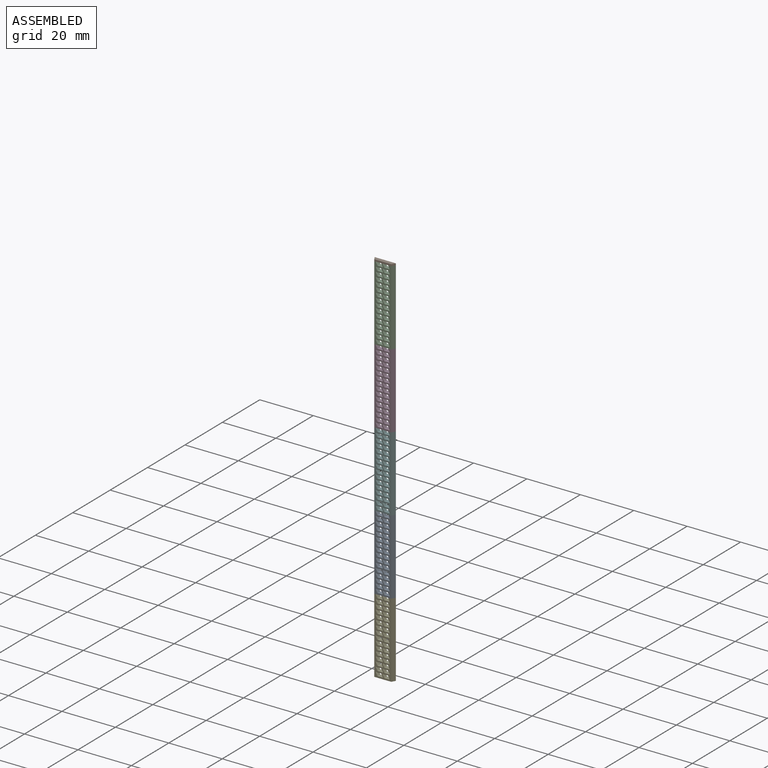
[diagram: assembled view]
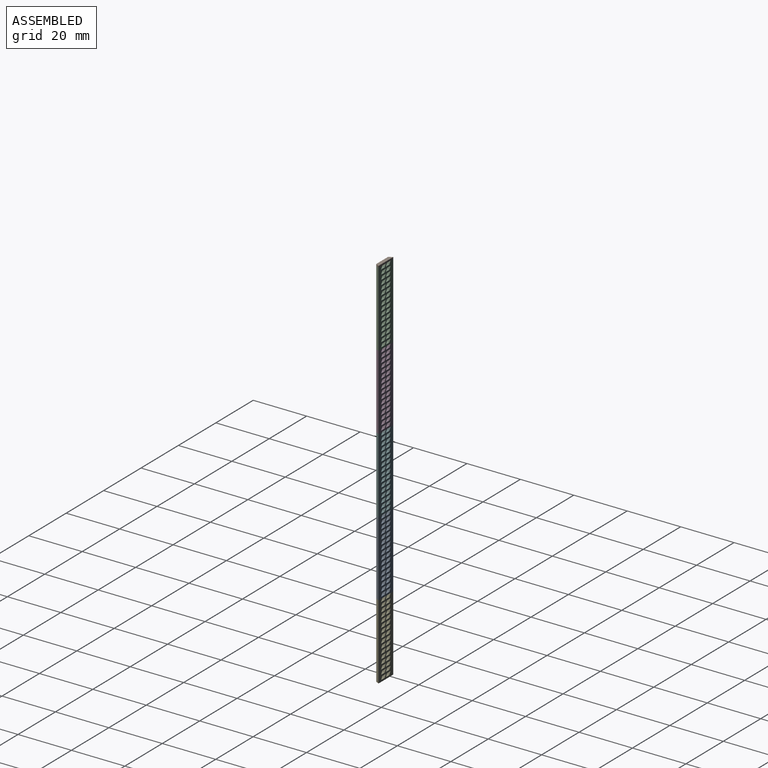
[diagram: assembled view, second angle]
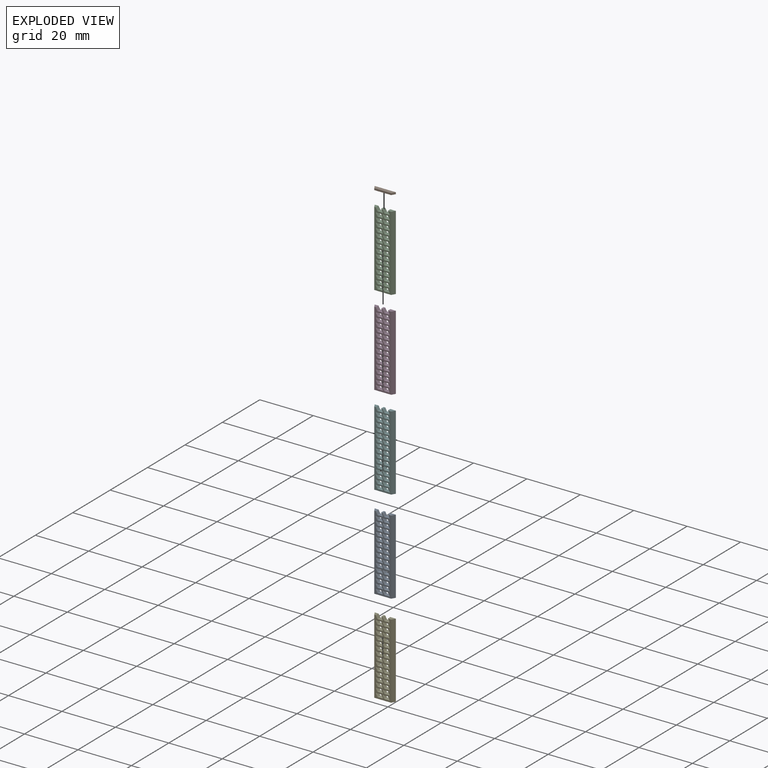
[diagram: exploded view]
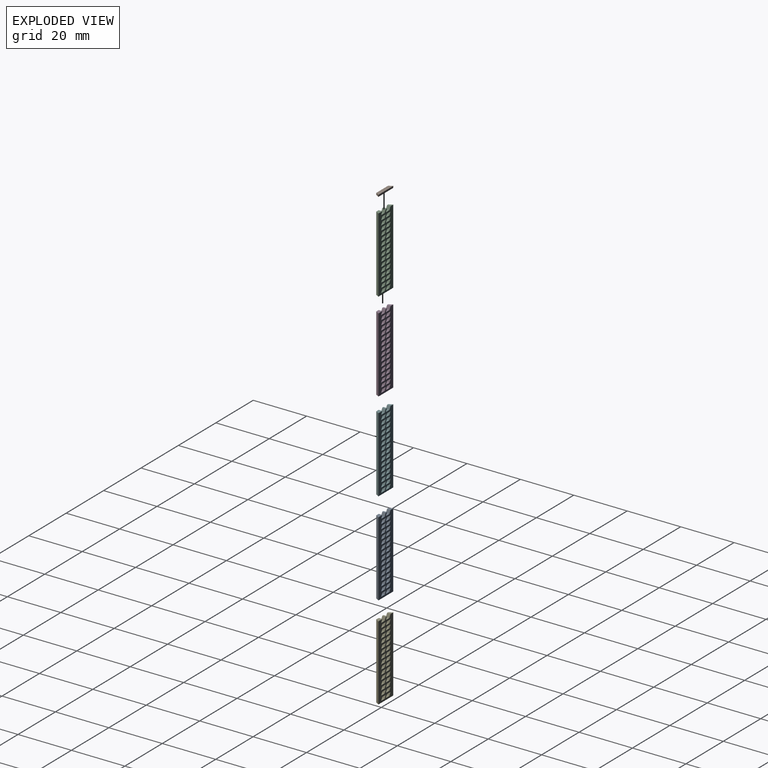
[diagram: exploded view, second angle]
ASSEMBLY  parts=6 mates=5
PART A: 260 faces, bbox 7.9x1.4x28.2 mm
  f0: plane 1.38x0.66mm, normal (0,0,1), area 0.9mm2, adj f2,f3,f28,f117,f190,f194
  f1: plane 2.09x1.38mm, normal (0,0,1), area 2.3mm2, adj f2,f3,f5,f30,f191
  f2: plane 28.13x6.35mm, normal (0,-1,0), area 85.4mm2, adj f0,f1,f4,f5,f6,f7,f134,f135
  f3: plane 28.13x7.94mm, normal (0,1,0), area 157.4mm2, adj f0,f1,f4,f5,f6,f7,f8,f9
  f4: plane 28.13x1.38mm, normal (-0.87,-0.5,0), area 44.6mm2, adj f2,f3,f6,f7
  f5: plane 28.13x1.38mm, normal (0.87,-0.5,0), area 44.6mm2, adj f1,f2,f3,f7
  f6: plane 1.45x1.38mm, normal (0,0,1), area 1.4mm2, adj f2,f3,f4,f115,f193
  f7: plane 7.94x1.38mm, normal (0,0,-1), area 9.8mm2, adj f2,f3,f4,f5
  f8: plane 1.87x1.25mm, normal (0,0,1), area 2.3mm2, adj f3,f9,f11,f257
  f9: plane 1.25x1.1mm, normal (-0.87,0,-0.5), area 1.6mm2, adj f3,f8,f10,f259
  f10: plane 1.87x1.25mm, normal (0,0,-1), area 2.3mm2, adj f3,f9,f11,f258
  f11: plane 1.25x1.1mm, normal (0.87,0,0.5), area 1.6mm2, adj f3,f8,f10,f256
  f12: plane 1.87x1.25mm, normal (0,0,1), area 2.3mm2, adj f3,f13,f15,f163
  f13: plane 1.25x1.1mm, normal (-0.87,0,-0.5), area 1.6mm2, adj f3,f12,f14,f165
  f14: plane 1.87x1.25mm, normal (0,0,-1), area 2.3mm2, adj f3,f13,f15,f164
  f15: plane 1.25x1.1mm, normal (0.87,0,0.5), area 1.6mm2, adj f3,f12,f14,f162
  f16: plane 1.87x1.25mm, normal (0,0,1), area 2.3mm2, adj f3,f17,f19,f167
  f17: plane 1.25x1.1mm, normal (-0.87,0,-0.5), area 1.6mm2, adj f3,f16,f18,f169
  f18: plane 1.87x1.25mm, normal (0,0,-1), area 2.3mm2, adj f3,f17,f19,f168
  f19: plane 1.25x1.1mm, normal (0.87,0,0.5), area 1.6mm2, adj f3,f16,f18,f166
  f20: plane 1.87x1.25mm, normal (0,0,-1), area 2.3mm2, adj f3,f21,f23,f171
  f21: plane 1.25x1.1mm, normal (0.87,0,0.5), area 1.6mm2, adj f3,f20,f22,f173
  f22: plane 1.87x1.25mm, normal (0,0,1), area 2.3mm2, adj f3,f21,f23,f172
  f23: plane 1.25x1.1mm, normal (-0.87,0,-0.5), area 1.6mm2, adj f3,f20,f22,f170
  f24: plane 1.87x1.25mm, normal (0,0,-1), area 2.3mm2, adj f3,f25,f27,f175
  f25: plane 1.25x1.1mm, normal (0.87,0,0.5), area 1.6mm2, adj f3,f24,f26,f177
  f26: plane 1.87x1.25mm, normal (0,0,1), area 2.3mm2, adj f3,f25,f27,f176
  f27: plane 1.25x1.1mm, normal (-0.87,0,-0.5), area 1.6mm2, adj f3,f24,f26,f174
  f28: plane 1.25x1.1mm, normal (0.87,0,0.5), area 1.6mm2, adj f0,f3,f29,f190
  f29: plane 1.87x1.25mm, normal (0,0,1), area 2.3mm2, adj f3,f28,f30,f192
  f30: plane 1.25x1.1mm, normal (-0.87,0,-0.5), area 1.6mm2, adj f1,f3,f29,f191
  f31: plane 1.87x1.25mm, normal (0,0,1), area 2.3mm2, adj f3,f32,f34,f187
  f32: plane 1.25x1.1mm, normal (-0.87,0,-0.5), area 1.6mm2, adj f3,f31,f33,f189
  f33: plane 1.87x1.25mm, normal (0,0,-1), area 2.3mm2, adj f3,f32,f34,f188
  f34: plane 1.25x1.1mm, normal (0.87,0,0.5), area 1.6mm2, adj f3,f31,f33,f186
  f35: plane 1.87x1.25mm, normal (0,0,-1), area 2.3mm2, adj f3,f36,f38,f183
  f36: plane 1.25x1.1mm, normal (0.87,0,0.5), area 1.6mm2, adj f3,f35,f37,f185
  f37: plane 1.87x1.25mm, normal (0,0,1), area 2.3mm2, adj f3,f36,f38,f184
  f38: plane 1.25x1.1mm, normal (-0.87,0,-0.5), area 1.6mm2, adj f3,f35,f37,f182
  f39: plane 1.87x1.25mm, normal (0,0,1), area 2.3mm2, adj f3,f40,f42,f179
  f40: plane 1.25x1.1mm, normal (-0.87,0,-0.5), area 1.6mm2, adj f3,f39,f41,f181
  f41: plane 1.87x1.25mm, normal (0,0,-1), area 2.3mm2, adj f3,f40,f42,f180
  f42: plane 1.25x1.1mm, normal (0.87,0,0.5), area 1.6mm2, adj f3,f39,f41,f178
  f43: plane 1.87x1.25mm, normal (0,0,1), area 2.3mm2, adj f3,f44,f46,f135
  f44: plane 1.25x1.1mm, normal (-0.87,0,-0.5), area 1.6mm2, adj f3,f43,f45,f137
  f45: plane 1.87x1.25mm, normal (0,0,-1), area 2.3mm2, adj f3,f44,f46,f136
  f46: plane 1.25x1.1mm, normal (0.87,0,0.5), area 1.6mm2, adj f3,f43,f45,f134
  f47: plane 1.87x1.25mm, normal (0,0,-1), area 2.3mm2, adj f3,f48,f50,f139
  f48: plane 1.25x1.1mm, normal (0.87,0,0.5), area 1.6mm2, adj f3,f47,f49,f141
  f49: plane 1.87x1.25mm, normal (0,0,1), area 2.3mm2, adj f3,f48,f50,f140
  f50: plane 1.25x1.1mm, normal (-0.87,0,-0.5), area 1.6mm2, adj f3,f47,f49,f138
  f51: plane 1.87x1.25mm, normal (0,0,-1), area 2.3mm2, adj f3,f52,f54,f143
  f52: plane 1.25x1.1mm, normal (0.87,0,0.5), area 1.6mm2, adj f3,f51,f53,f145
  f53: plane 1.87x1.25mm, normal (0,0,1), area 2.3mm2, adj f3,f52,f54,f144
  f54: plane 1.25x1.1mm, normal (-0.87,0,-0.5), area 1.6mm2, adj f3,f51,f53,f142
  f55: plane 1.87x1.25mm, normal (0,0,1), area 2.3mm2, adj f3,f56,f58,f147
  f56: plane 1.25x1.1mm, normal (-0.87,0,-0.5), area 1.6mm2, adj f3,f55,f57,f149
  f57: plane 1.87x1.25mm, normal (0,0,-1), area 2.3mm2, adj f3,f56,f58,f148
  f58: plane 1.25x1.1mm, normal (0.87,0,0.5), area 1.6mm2, adj f3,f55,f57,f146
  f59: plane 1.87x1.25mm, normal (0,0,1), area 2.3mm2, adj f3,f60,f62,f151
  f60: plane 1.25x1.1mm, normal (-0.87,0,-0.5), area 1.6mm2, adj f3,f59,f61,f153
  f61: plane 1.87x1.25mm, normal (0,0,-1), area 2.3mm2, adj f3,f60,f62,f152
  f62: plane 1.25x1.1mm, normal (0.87,0,0.5), area 1.6mm2, adj f3,f59,f61,f150
  f63: plane 1.87x1.25mm, normal (0,0,-1), area 2.3mm2, adj f3,f64,f66,f155
  f64: plane 1.25x1.1mm, normal (0.87,0,0.5), area 1.6mm2, adj f3,f63,f65,f157
  f65: plane 1.87x1.25mm, normal (0,0,1), area 2.3mm2, adj f3,f64,f66,f156
  f66: plane 1.25x1.1mm, normal (-0.87,0,-0.5), area 1.6mm2, adj f3,f63,f65,f154
  f67: plane 1.87x1.25mm, normal (0,0,-1), area 2.3mm2, adj f3,f68,f70,f159
  f68: plane 1.25x1.1mm, normal (0.87,0,0.5), area 1.6mm2, adj f3,f67,f69,f161
  f69: plane 1.87x1.25mm, normal (0,0,1), area 2.3mm2, adj f3,f68,f70,f160
  f70: plane 1.25x1.1mm, normal (-0.87,0,-0.5), area 1.6mm2, adj f3,f67,f69,f158
  f71: plane 1.87x1.25mm, normal (0,0,-1), area 2.3mm2, adj f3,f72,f74,f225
  f72: plane 1.25x1.1mm, normal (0.87,0,0.5), area 1.6mm2, adj f3,f71,f73,f227
  f73: plane 1.87x1.25mm, normal (0,0,1), area 2.3mm2, adj f3,f72,f74,f226
  f74: plane 1.25x1.1mm, normal (-0.87,0,-0.5), area 1.6mm2, adj f3,f71,f73,f224
  f75: plane 1.87x1.25mm, normal (0,0,-1), area 2.3mm2, adj f3,f76,f78,f229
  f76: plane 1.25x1.1mm, normal (0.87,0,0.5), area 1.6mm2, adj f3,f75,f77,f231
  f77: plane 1.87x1.25mm, normal (0,0,1), area 2.3mm2, adj f3,f76,f78,f230
  f78: plane 1.25x1.1mm, normal (-0.87,0,-0.5), area 1.6mm2, adj f3,f75,f77,f228
  f79: plane 1.87x1.25mm, normal (0,0,1), area 2.3mm2, adj f3,f80,f82,f233
  f80: plane 1.25x1.1mm, normal (-0.87,0,-0.5), area 1.6mm2, adj f3,f79,f81,f235
  f81: plane 1.87x1.25mm, normal (0,0,-1), area 2.3mm2, adj f3,f80,f82,f234
  f82: plane 1.25x1.1mm, normal (0.87,0,0.5), area 1.6mm2, adj f3,f79,f81,f232
  f83: plane 1.87x1.25mm, normal (0,0,1), area 2.3mm2, adj f3,f84,f86,f237
  f84: plane 1.25x1.1mm, normal (-0.87,0,-0.5), area 1.6mm2, adj f3,f83,f85,f239
  f85: plane 1.87x1.25mm, normal (0,0,-1), area 2.3mm2, adj f3,f84,f86,f238
  f86: plane 1.25x1.1mm, normal (0.87,0,0.5), area 1.6mm2, adj f3,f83,f85,f236
  f87: plane 1.87x1.25mm, normal (0,0,-1), area 2.3mm2, adj f3,f88,f90,f252
  f88: plane 1.25x1.1mm, normal (0.87,0,0.5), area 1.6mm2, adj f3,f87,f89,f253
  f89: plane 1.87x1.25mm, normal (0,0,1), area 2.3mm2, adj f3,f88,f90,f255
  f90: plane 1.25x1.1mm, normal (-0.87,0,-0.5), area 1.6mm2, adj f3,f87,f89,f254
  f91: plane 1.87x1.25mm, normal (0,0,1), area 2.3mm2, adj f3,f92,f94,f249
  f92: plane 1.25x1.1mm, normal (-0.87,0,-0.5), area 1.6mm2, adj f3,f91,f93,f251
  f93: plane 1.87x1.25mm, normal (0,0,-1), area 2.3mm2, adj f3,f92,f94,f250
  f94: plane 1.25x1.1mm, normal (0.87,0,0.5), area 1.6mm2, adj f3,f91,f93,f248
  f95: plane 1.87x1.25mm, normal (0,0,-1), area 2.3mm2, adj f3,f96,f98,f245
  f96: plane 1.25x1.1mm, normal (0.87,0,0.5), area 1.6mm2, adj f3,f95,f97,f247
  f97: plane 1.87x1.25mm, normal (0,0,1), area 2.3mm2, adj f3,f96,f98,f246
  f98: plane 1.25x1.1mm, normal (-0.87,0,-0.5), area 1.6mm2, adj f3,f95,f97,f244
  f99: plane 1.87x1.25mm, normal (0,0,-1), area 2.3mm2, adj f3,f100,f102,f241
  f100: plane 1.25x1.1mm, normal (0.87,0,0.5), area 1.6mm2, adj f3,f99,f101,f243
  f101: plane 1.87x1.25mm, normal (0,0,1), area 2.3mm2, adj f3,f100,f102,f242
  f102: plane 1.25x1.1mm, normal (-0.87,0,-0.5), area 1.6mm2, adj f3,f99,f101,f240
  f103: plane 1.87x1.25mm, normal (0,0,-1), area 2.3mm2, adj f3,f104,f106,f205
  f104: plane 1.25x1.1mm, normal (0.87,0,0.5), area 1.6mm2, adj f3,f103,f105,f207
  f105: plane 1.87x1.25mm, normal (0,0,1), area 2.3mm2, adj f3,f104,f106,f206
  f106: plane 1.25x1.1mm, normal (-0.87,0,-0.5), area 1.6mm2, adj f3,f103,f105,f204
  f107: plane 1.87x1.25mm, normal (0,0,1), area 2.3mm2, adj f3,f108,f110,f201
  f108: plane 1.25x1.1mm, normal (-0.87,0,-0.5), area 1.6mm2, adj f3,f107,f109,f203
  f109: plane 1.87x1.25mm, normal (0,0,-1), area 2.3mm2, adj f3,f108,f110,f202
  f110: plane 1.25x1.1mm, normal (0.87,0,0.5), area 1.6mm2, adj f3,f107,f109,f200
  f111: plane 1.25x1.1mm, normal (0.87,0,0.5), area 1.6mm2, adj f3,f112,f114,f197
  f112: plane 1.87x1.25mm, normal (0,0,1), area 2.3mm2, adj f3,f111,f113,f199
  f113: plane 1.25x1.1mm, normal (-0.87,0,-0.5), area 1.6mm2, adj f3,f112,f114,f198
  f114: plane 1.87x1.25mm, normal (0,0,-1), area 2.3mm2, adj f3,f111,f113,f196
  f115: plane 1.25x1.1mm, normal (0.87,0,0.5), area 1.6mm2, adj f3,f6,f116,f193
  f116: plane 1.87x1.25mm, normal (0,0,1), area 2.3mm2, adj f3,f115,f117,f195
  f117: plane 1.25x1.1mm, normal (-0.87,0,-0.5), area 1.6mm2, adj f0,f3,f116,f194
  f118: plane 1.87x1.25mm, normal (0,0,1), area 2.3mm2, adj f3,f119,f121,f221
  f119: plane 1.25x1.1mm, normal (-0.87,0,-0.5), area 1.6mm2, adj f3,f118,f120,f223
  f120: plane 1.87x1.25mm, normal (0,0,-1), area 2.3mm2, adj f3,f119,f121,f222
  f121: plane 1.25x1.1mm, normal (0.87,0,0.5), area 1.6mm2, adj f3,f118,f120,f220
  f122: plane 1.87x1.25mm, normal (0,0,1), area 2.3mm2, adj f3,f123,f125,f217
  f123: plane 1.25x1.1mm, normal (-0.87,0,-0.5), area 1.6mm2, adj f3,f122,f124,f219
  f124: plane 1.87x1.25mm, normal (0,0,-1), area 2.3mm2, adj f3,f123,f125,f218
  f125: plane 1.25x1.1mm, normal (0.87,0,0.5), area 1.6mm2, adj f3,f122,f124,f216
  f126: plane 1.87x1.25mm, normal (0,0,-1), area 2.3mm2, adj f3,f127,f129,f213
  f127: plane 1.25x1.1mm, normal (0.87,0,0.5), area 1.6mm2, adj f3,f126,f128,f215
  f128: plane 1.87x1.25mm, normal (0,0,1), area 2.3mm2, adj f3,f127,f129,f214
  f129: plane 1.25x1.1mm, normal (-0.87,0,-0.5), area 1.6mm2, adj f3,f126,f128,f212
  f130: plane 1.87x1.25mm, normal (0,0,1), area 2.3mm2, adj f3,f131,f133,f209
  f131: plane 1.25x1.1mm, normal (-0.87,0,-0.5), area 1.6mm2, adj f3,f130,f132,f211
  f132: plane 1.87x1.25mm, normal (0,0,-1), area 2.3mm2, adj f3,f131,f133,f210
  f133: plane 1.25x1.1mm, normal (0.87,0,0.5), area 1.6mm2, adj f3,f130,f132,f208
  f134: cylinder r=0.13mm len=1.42mm, axis (0.5,0,-0.87), area 0.3mm2, adj f2,f46,f135,f136
  f135: cylinder r=0.13mm len=2.16mm, axis (1,0,0), area 0.4mm2, adj f2,f43,f134,f137
  f136: cylinder r=0.13mm len=2.16mm, axis (-1,0,0), area 0.4mm2, adj f2,f45,f134,f137
  f137: cylinder r=0.13mm len=1.42mm, axis (-0.5,0,0.87), area 0.3mm2, adj f2,f44,f135,f136
  f138: cylinder r=0.13mm len=1.42mm, axis (-0.5,0,0.87), area 0.3mm2, adj f2,f50,f139,f140
  f139: cylinder r=0.13mm len=2.16mm, axis (-1,0,0), area 0.4mm2, adj f2,f47,f138,f141
  f140: cylinder r=0.13mm len=2.16mm, axis (1,0,0), area 0.4mm2, adj f2,f49,f138,f141
  f141: cylinder r=0.13mm len=1.42mm, axis (0.5,0,-0.87), area 0.3mm2, adj f2,f48,f139,f140
  f142: cylinder r=0.13mm len=1.42mm, axis (-0.5,0,0.87), area 0.3mm2, adj f2,f54,f143,f144
  f143: cylinder r=0.13mm len=2.16mm, axis (-1,0,0), area 0.4mm2, adj f2,f51,f142,f145
  f144: cylinder r=0.13mm len=2.16mm, axis (1,0,0), area 0.4mm2, adj f2,f53,f142,f145
  f145: cylinder r=0.13mm len=1.42mm, axis (0.5,0,-0.87), area 0.3mm2, adj f2,f52,f143,f144
  f146: cylinder r=0.13mm len=1.42mm, axis (0.5,0,-0.87), area 0.3mm2, adj f2,f58,f147,f148
  f147: cylinder r=0.13mm len=2.16mm, axis (1,0,0), area 0.4mm2, adj f2,f55,f146,f149
  f148: cylinder r=0.13mm len=2.16mm, axis (-1,0,0), area 0.4mm2, adj f2,f57,f146,f149
  f149: cylinder r=0.13mm len=1.42mm, axis (-0.5,0,0.87), area 0.3mm2, adj f2,f56,f147,f148
  f150: cylinder r=0.13mm len=1.42mm, axis (0.5,0,-0.87), area 0.3mm2, adj f2,f62,f151,f152
  f151: cylinder r=0.13mm len=2.16mm, axis (1,0,0), area 0.4mm2, adj f2,f59,f150,f153
  f152: cylinder r=0.13mm len=2.16mm, axis (-1,0,0), area 0.4mm2, adj f2,f61,f150,f153
  f153: cylinder r=0.13mm len=1.42mm, axis (-0.5,0,0.87), area 0.3mm2, adj f2,f60,f151,f152
  f154: cylinder r=0.13mm len=1.42mm, axis (-0.5,0,0.87), area 0.3mm2, adj f2,f66,f155,f156
  f155: cylinder r=0.13mm len=2.16mm, axis (-1,0,0), area 0.4mm2, adj f2,f63,f154,f157
  f156: cylinder r=0.13mm len=2.16mm, axis (1,0,0), area 0.4mm2, adj f2,f65,f154,f157
  f157: cylinder r=0.13mm len=1.42mm, axis (0.5,0,-0.87), area 0.3mm2, adj f2,f64,f155,f156
  f158: cylinder r=0.13mm len=1.42mm, axis (-0.5,0,0.87), area 0.3mm2, adj f2,f70,f159,f160
  f159: cylinder r=0.13mm len=2.16mm, axis (-1,0,0), area 0.4mm2, adj f2,f67,f158,f161
  f160: cylinder r=0.13mm len=2.16mm, axis (1,0,0), area 0.4mm2, adj f2,f69,f158,f161
  f161: cylinder r=0.13mm len=1.42mm, axis (0.5,0,-0.87), area 0.3mm2, adj f2,f68,f159,f160
  f162: cylinder r=0.13mm len=1.42mm, axis (0.5,0,-0.87), area 0.3mm2, adj f2,f15,f163,f164
  f163: cylinder r=0.13mm len=2.16mm, axis (1,0,0), area 0.4mm2, adj f2,f12,f162,f165
  f164: cylinder r=0.13mm len=2.16mm, axis (-1,0,0), area 0.4mm2, adj f2,f14,f162,f165
  f165: cylinder r=0.13mm len=1.42mm, axis (-0.5,0,0.87), area 0.3mm2, adj f2,f13,f163,f164
  f166: cylinder r=0.13mm len=1.42mm, axis (0.5,0,-0.87), area 0.3mm2, adj f2,f19,f167,f168
  f167: cylinder r=0.13mm len=2.16mm, axis (1,0,0), area 0.4mm2, adj f2,f16,f166,f169
  f168: cylinder r=0.13mm len=2.16mm, axis (-1,0,0), area 0.4mm2, adj f2,f18,f166,f169
  f169: cylinder r=0.13mm len=1.42mm, axis (-0.5,0,0.87), area 0.3mm2, adj f2,f17,f167,f168
  f170: cylinder r=0.13mm len=1.42mm, axis (-0.5,0,0.87), area 0.3mm2, adj f2,f23,f171,f172
  f171: cylinder r=0.13mm len=2.16mm, axis (-1,0,0), area 0.4mm2, adj f2,f20,f170,f173
  f172: cylinder r=0.13mm len=2.16mm, axis (1,0,0), area 0.4mm2, adj f2,f22,f170,f173
  f173: cylinder r=0.13mm len=1.42mm, axis (0.5,0,-0.87), area 0.3mm2, adj f2,f21,f171,f172
  f174: cylinder r=0.13mm len=1.42mm, axis (-0.5,0,0.87), area 0.3mm2, adj f2,f27,f175,f176
  f175: cylinder r=0.13mm len=2.16mm, axis (-1,0,0), area 0.4mm2, adj f2,f24,f174,f177
  f176: cylinder r=0.13mm len=2.16mm, axis (1,0,0), area 0.4mm2, adj f2,f26,f174,f177
  f177: cylinder r=0.13mm len=1.42mm, axis (0.5,0,-0.87), area 0.3mm2, adj f2,f25,f175,f176
  f178: cylinder r=0.13mm len=1.42mm, axis (0.5,0,-0.87), area 0.3mm2, adj f2,f42,f179,f180
  f179: cylinder r=0.13mm len=2.16mm, axis (1,0,0), area 0.4mm2, adj f2,f39,f178,f181
  f180: cylinder r=0.13mm len=2.16mm, axis (-1,0,0), area 0.4mm2, adj f2,f41,f178,f181
  f181: cylinder r=0.13mm len=1.42mm, axis (-0.5,0,0.87), area 0.3mm2, adj f2,f40,f179,f180
  f182: cylinder r=0.13mm len=1.42mm, axis (-0.5,0,0.87), area 0.3mm2, adj f2,f38,f183,f184
  f183: cylinder r=0.13mm len=2.16mm, axis (-1,0,0), area 0.4mm2, adj f2,f35,f182,f185
  f184: cylinder r=0.13mm len=2.16mm, axis (1,0,0), area 0.4mm2, adj f2,f37,f182,f185
  f185: cylinder r=0.13mm len=1.42mm, axis (0.5,0,-0.87), area 0.3mm2, adj f2,f36,f183,f184
  f186: cylinder r=0.13mm len=1.42mm, axis (0.5,0,-0.87), area 0.3mm2, adj f2,f34,f187,f188
  f187: cylinder r=0.13mm len=2.16mm, axis (1,0,0), area 0.4mm2, adj f2,f31,f186,f189
  f188: cylinder r=0.13mm len=2.16mm, axis (-1,0,0), area 0.4mm2, adj f2,f33,f186,f189
  f189: cylinder r=0.13mm len=1.42mm, axis (-0.5,0,0.87), area 0.3mm2, adj f2,f32,f187,f188
  f190: cylinder r=0.13mm len=1.29mm, axis (0.5,0,-0.87), area 0.3mm2, adj f0,f2,f28,f192
  f191: cylinder r=0.13mm len=1.35mm, axis (-0.5,0,0.87), area 0.3mm2, adj f1,f2,f30,f192
  f192: cylinder r=0.13mm len=2.16mm, axis (1,0,0), area 0.4mm2, adj f2,f29,f190,f191
  f193: cylinder r=0.13mm len=1.29mm, axis (0.5,0,-0.87), area 0.3mm2, adj f2,f6,f115,f195
  f194: cylinder r=0.13mm len=1.35mm, axis (-0.5,0,0.87), area 0.3mm2, adj f0,f2,f117,f195
  f195: cylinder r=0.13mm len=2.16mm, axis (1,0,0), area 0.4mm2, adj f2,f116,f193,f194
  f196: cylinder r=0.13mm len=2.16mm, axis (-1,0,0), area 0.4mm2, adj f2,f114,f197,f198
  f197: cylinder r=0.13mm len=1.42mm, axis (0.5,0,-0.87), area 0.3mm2, adj f2,f111,f196,f199
  f198: cylinder r=0.13mm len=1.42mm, axis (-0.5,0,0.87), area 0.3mm2, adj f2,f113,f196,f199
  f199: cylinder r=0.13mm len=2.16mm, axis (1,0,0), area 0.4mm2, adj f2,f112,f197,f198
  f200: cylinder r=0.13mm len=1.42mm, axis (0.5,0,-0.87), area 0.3mm2, adj f2,f110,f201,f202
  f201: cylinder r=0.13mm len=2.16mm, axis (1,0,0), area 0.4mm2, adj f2,f107,f200,f203
  f202: cylinder r=0.13mm len=2.16mm, axis (-1,0,0), area 0.4mm2, adj f2,f109,f200,f203
  f203: cylinder r=0.13mm len=1.42mm, axis (-0.5,0,0.87), area 0.3mm2, adj f2,f108,f201,f202
  f204: cylinder r=0.13mm len=1.42mm, axis (-0.5,0,0.87), area 0.3mm2, adj f2,f106,f205,f206
  f205: cylinder r=0.13mm len=2.16mm, axis (-1,0,0), area 0.4mm2, adj f2,f103,f204,f207
  f206: cylinder r=0.13mm len=2.16mm, axis (1,0,0), area 0.4mm2, adj f2,f105,f204,f207
  f207: cylinder r=0.13mm len=1.42mm, axis (0.5,0,-0.87), area 0.3mm2, adj f2,f104,f205,f206
  f208: cylinder r=0.13mm len=1.42mm, axis (0.5,0,-0.87), area 0.3mm2, adj f2,f133,f209,f210
  f209: cylinder r=0.13mm len=2.16mm, axis (1,0,0), area 0.4mm2, adj f2,f130,f208,f211
  f210: cylinder r=0.13mm len=2.16mm, axis (-1,0,0), area 0.4mm2, adj f2,f132,f208,f211
  f211: cylinder r=0.13mm len=1.42mm, axis (-0.5,0,0.87), area 0.3mm2, adj f2,f131,f209,f210
  f212: cylinder r=0.13mm len=1.42mm, axis (-0.5,0,0.87), area 0.3mm2, adj f2,f129,f213,f214
  f213: cylinder r=0.13mm len=2.16mm, axis (-1,0,0), area 0.4mm2, adj f2,f126,f212,f215
  f214: cylinder r=0.13mm len=2.16mm, axis (1,0,0), area 0.4mm2, adj f2,f128,f212,f215
  f215: cylinder r=0.13mm len=1.42mm, axis (0.5,0,-0.87), area 0.3mm2, adj f2,f127,f213,f214
  f216: cylinder r=0.13mm len=1.42mm, axis (0.5,0,-0.87), area 0.3mm2, adj f2,f125,f217,f218
  f217: cylinder r=0.13mm len=2.16mm, axis (1,0,0), area 0.4mm2, adj f2,f122,f216,f219
  f218: cylinder r=0.13mm len=2.16mm, axis (-1,0,0), area 0.4mm2, adj f2,f124,f216,f219
  f219: cylinder r=0.13mm len=1.42mm, axis (-0.5,0,0.87), area 0.3mm2, adj f2,f123,f217,f218
  f220: cylinder r=0.13mm len=1.42mm, axis (0.5,0,-0.87), area 0.3mm2, adj f2,f121,f221,f222
  f221: cylinder r=0.13mm len=2.16mm, axis (1,0,0), area 0.4mm2, adj f2,f118,f220,f223
  f222: cylinder r=0.13mm len=2.16mm, axis (-1,0,0), area 0.4mm2, adj f2,f120,f220,f223
  f223: cylinder r=0.13mm len=1.42mm, axis (-0.5,0,0.87), area 0.3mm2, adj f2,f119,f221,f222
  f224: cylinder r=0.13mm len=1.42mm, axis (-0.5,0,0.87), area 0.3mm2, adj f2,f74,f225,f226
  f225: cylinder r=0.13mm len=2.16mm, axis (-1,0,0), area 0.4mm2, adj f2,f71,f224,f227
  f226: cylinder r=0.13mm len=2.16mm, axis (1,0,0), area 0.4mm2, adj f2,f73,f224,f227
  f227: cylinder r=0.13mm len=1.42mm, axis (0.5,0,-0.87), area 0.3mm2, adj f2,f72,f225,f226
  f228: cylinder r=0.13mm len=1.42mm, axis (-0.5,0,0.87), area 0.3mm2, adj f2,f78,f229,f230
  f229: cylinder r=0.13mm len=2.16mm, axis (-1,0,0), area 0.4mm2, adj f2,f75,f228,f231
  f230: cylinder r=0.13mm len=2.16mm, axis (1,0,0), area 0.4mm2, adj f2,f77,f228,f231
  f231: cylinder r=0.13mm len=1.42mm, axis (0.5,0,-0.87), area 0.3mm2, adj f2,f76,f229,f230
  f232: cylinder r=0.13mm len=1.42mm, axis (0.5,0,-0.87), area 0.3mm2, adj f2,f82,f233,f234
  f233: cylinder r=0.13mm len=2.16mm, axis (1,0,0), area 0.4mm2, adj f2,f79,f232,f235
  f234: cylinder r=0.13mm len=2.16mm, axis (-1,0,0), area 0.4mm2, adj f2,f81,f232,f235
  f235: cylinder r=0.13mm len=1.42mm, axis (-0.5,0,0.87), area 0.3mm2, adj f2,f80,f233,f234
  f236: cylinder r=0.13mm len=1.42mm, axis (0.5,0,-0.87), area 0.3mm2, adj f2,f86,f237,f238
  f237: cylinder r=0.13mm len=2.16mm, axis (1,0,0), area 0.4mm2, adj f2,f83,f236,f239
  f238: cylinder r=0.13mm len=2.16mm, axis (-1,0,0), area 0.4mm2, adj f2,f85,f236,f239
  f239: cylinder r=0.13mm len=1.42mm, axis (-0.5,0,0.87), area 0.3mm2, adj f2,f84,f237,f238
  f240: cylinder r=0.13mm len=1.42mm, axis (-0.5,0,0.87), area 0.3mm2, adj f2,f102,f241,f242
  f241: cylinder r=0.13mm len=2.16mm, axis (-1,0,0), area 0.4mm2, adj f2,f99,f240,f243
  f242: cylinder r=0.13mm len=2.16mm, axis (1,0,0), area 0.4mm2, adj f2,f101,f240,f243
  f243: cylinder r=0.13mm len=1.42mm, axis (0.5,0,-0.87), area 0.3mm2, adj f2,f100,f241,f242
  f244: cylinder r=0.13mm len=1.42mm, axis (-0.5,0,0.87), area 0.3mm2, adj f2,f98,f245,f246
  f245: cylinder r=0.13mm len=2.16mm, axis (-1,0,0), area 0.4mm2, adj f2,f95,f244,f247
  f246: cylinder r=0.13mm len=2.16mm, axis (1,0,0), area 0.4mm2, adj f2,f97,f244,f247
  f247: cylinder r=0.13mm len=1.42mm, axis (0.5,0,-0.87), area 0.3mm2, adj f2,f96,f245,f246
  f248: cylinder r=0.13mm len=1.42mm, axis (0.5,0,-0.87), area 0.3mm2, adj f2,f94,f249,f250
  f249: cylinder r=0.13mm len=2.16mm, axis (1,0,0), area 0.4mm2, adj f2,f91,f248,f251
  f250: cylinder r=0.13mm len=2.16mm, axis (-1,0,0), area 0.4mm2, adj f2,f93,f248,f251
  f251: cylinder r=0.13mm len=1.42mm, axis (-0.5,0,0.87), area 0.3mm2, adj f2,f92,f249,f250
  f252: cylinder r=0.13mm len=2.16mm, axis (-1,0,0), area 0.4mm2, adj f2,f87,f253,f254
  f253: cylinder r=0.13mm len=1.42mm, axis (0.5,0,-0.87), area 0.3mm2, adj f2,f88,f252,f255
  f254: cylinder r=0.13mm len=1.42mm, axis (-0.5,0,0.87), area 0.3mm2, adj f2,f90,f252,f255
  f255: cylinder r=0.13mm len=2.16mm, axis (1,0,0), area 0.4mm2, adj f2,f89,f253,f254
  f256: cylinder r=0.13mm len=1.42mm, axis (0.5,0,-0.87), area 0.3mm2, adj f2,f11,f257,f258
  f257: cylinder r=0.13mm len=2.16mm, axis (1,0,0), area 0.4mm2, adj f2,f8,f256,f259
  f258: cylinder r=0.13mm len=2.16mm, axis (-1,0,0), area 0.4mm2, adj f2,f10,f256,f259
  f259: cylinder r=0.13mm len=1.42mm, axis (-0.5,0,0.87), area 0.3mm2, adj f2,f9,f257,f258
PART B: 6 faces, bbox 7.9x1.4x0.7 mm
  f0: plane 1.38x0.79mm, normal (-0.87,-0.5,0), area 1mm2, adj f1,f3,f4,f5
  f1: plane 6.35x0.66mm, normal (0,-1,0), area 4.2mm2, adj f0,f2,f4,f5
  f2: plane 1.38x0.79mm, normal (0.87,-0.5,0), area 1mm2, adj f1,f3,f4,f5
  f3: plane 7.94x0.66mm, normal (0,1,0), area 5.2mm2, adj f0,f2,f4,f5
  f4: plane 7.94x1.38mm, normal (0,0,1), area 9.8mm2, adj f0,f1,f2,f3
  f5: plane 7.94x1.38mm, normal (0,0,-1), area 9.8mm2, adj f0,f1,f2,f3
PART C: same geometry as A
PART D: same geometry as A
PART E: same geometry as A
PART F: same geometry as A
PLACE A t=(-24.62,-0.69,-29.83)mm
PLACE B t=(47.43,14.1,82.67)mm
PLACE C t=(-24.62,-0.69,54.55)mm
PLACE D t=(-24.62,-0.69,26.42)mm
PLACE E t=(-24.62,-0.69,-57.95)mm
PLACE F t=(-24.62,-0.69,-1.7)mm
MATE fastened C.f1 <-> B.f5  axis (0,0,1) through (-17.48,0.69,82.67)mm
MATE fastened C.f7 <-> D.f1  axis (0,0,1) through (-17.48,0.69,54.55)mm
MATE fastened A.f1 <-> F.f7  axis (0,0,1) through (-17.48,0.69,-1.7)mm
MATE fastened D.f7 <-> F.f1  axis (0,0,-1) through (-17.48,0.69,26.42)mm
MATE fastened A.f7 <-> E.f6  axis (0,0,1) through (-25.41,0.69,-29.83)mm
